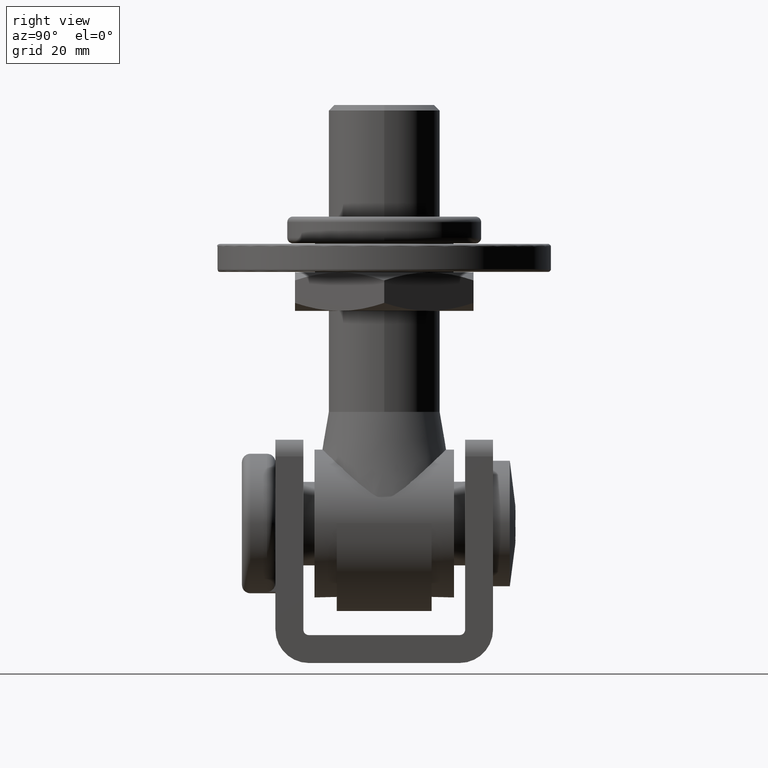
[diagram: clean part render]
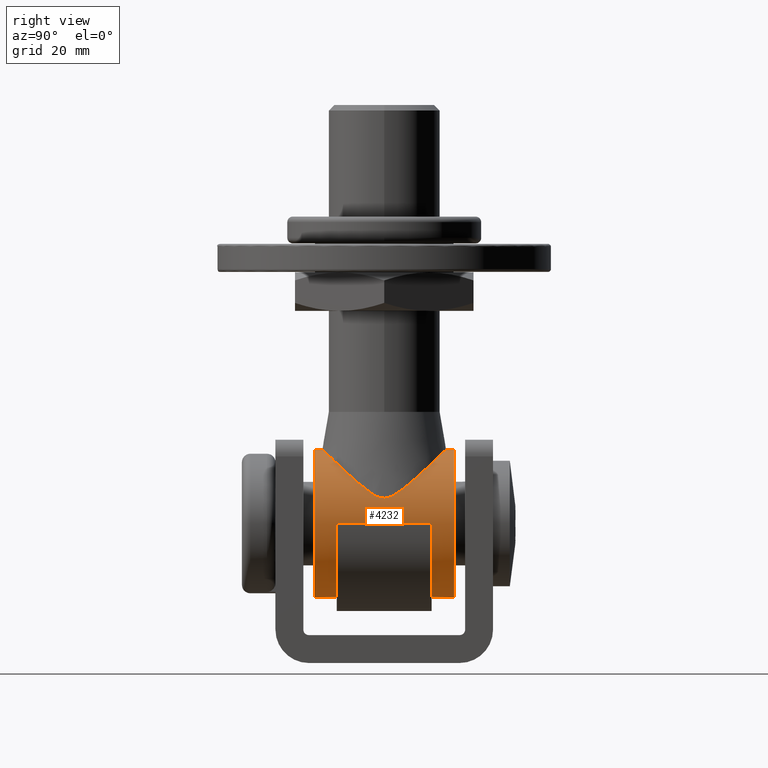
[diagram: same view with one face highlighted and labeled with its STEP entity id]
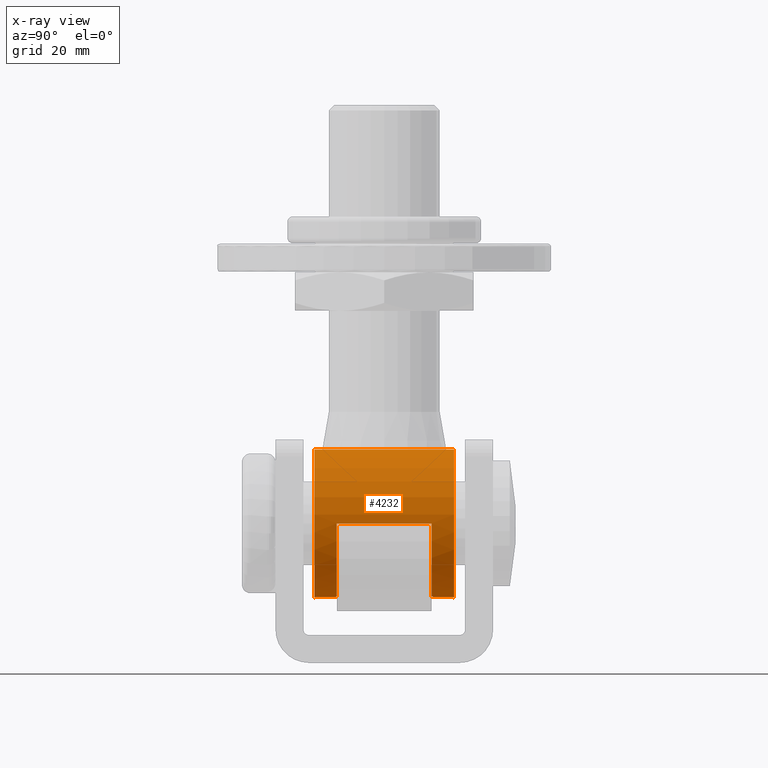
[diagram: x-ray of the same camera — body ghosted, the highlighted face saturated]
A machine part, right view. The second image highlights one B-rep face of the part: STEP entity #4232.
The next image is the same camera in x-ray: the body ghosted, the highlighted face saturated — about 0% of this face is hidden behind the body in this view.
In plain terms, the highlighted cylindrical surface (bore or boss wall) has radius 13.25 mm, axis along (-0, -1, -0).
Its self-contained STEP definition (entity closure, byte-faithful):
#896 = AXIS2_PLACEMENT_3D ( 'NONE', #5827, #10612, #4564 ) ;
#1260 = CIRCLE ( 'NONE', #8952, 13.25000000000000178 ) ;
#1590 = DIRECTION ( 'NONE',  ( -0.000000000000000000, -1.000000000000000000, -0.000000000000000000 ) ) ;
#1656 = VECTOR ( 'NONE', #1590, 1000.000000000000000 ) ;
#1827 = ORIENTED_EDGE ( 'NONE', *, *, #5536, .F. ) ;
#1923 = CARTESIAN_POINT ( 'NONE',  ( 13.25000000000000178, -8.500000000000000000, 3.816391647148974977E-14 ) ) ;
#2064 = DIRECTION ( 'NONE',  ( 0.000000000000000000, 1.000000000000000000, -0.000000000000000000 ) ) ;
#2169 = EDGE_LOOP ( 'NONE', ( #12134 ) ) ;
#2233 = ORIENTED_EDGE ( 'NONE', *, *, #10910, .F. ) ;
#2302 = DIRECTION ( 'NONE',  ( 0.000000000000000000, 1.000000000000000000, -0.000000000000000000 ) ) ;
#2484 = FACE_OUTER_BOUND ( 'NONE', #4130, .T. ) ;
#2538 = CARTESIAN_POINT ( 'NONE',  ( 13.25000000000000178, 8.500000000000000000, 3.816391647148975608E-14 ) ) ;
#2689 = EDGE_CURVE ( 'NONE', #3249, #9674, #7320, .T. ) ;
#2943 = VERTEX_POINT ( 'NONE', #2538 ) ;
#3249 = VERTEX_POINT ( 'NONE', #4916 ) ;
#3365 = EDGE_CURVE ( 'NONE', #2943, #3249, #1260, .T. ) ;
#3392 = FACE_OUTER_BOUND ( 'NONE', #2169, .T. ) ;
#3735 = EDGE_CURVE ( 'NONE', #14371, #14371, #6904, .T. ) ;
#3809 = DIRECTION ( 'NONE',  ( 0.000000000000000000, 0.000000000000000000, 1.000000000000000000 ) ) ;
#4130 = EDGE_LOOP ( 'NONE', ( #12625 ) ) ;
#4232 = ADVANCED_FACE ( 'NONE', ( #7365, #2484, #3392 ), #6792, .T. ) ;
#4511 = CARTESIAN_POINT ( 'NONE',  ( 0.000000000000000000, -8.500000000000000000, 0.000000000000000000 ) ) ;
#4564 = DIRECTION ( 'NONE',  ( 0.000000000000000000, 0.000000000000000000, -1.000000000000000000 ) ) ;
#4916 = CARTESIAN_POINT ( 'NONE',  ( -13.25000000000000178, 8.500000000000000000, 3.903127820947815962E-14 ) ) ;
#5536 = EDGE_CURVE ( 'NONE', #12190, #9674, #9424, .T. ) ;
#5827 = CARTESIAN_POINT ( 'NONE',  ( 0.000000000000000000, 12.50000000000000000, 0.000000000000000000 ) ) ;
#5930 = LINE ( 'NONE', #9032, #13687 ) ;
#6663 = AXIS2_PLACEMENT_3D ( 'NONE', #4511, #2064, #12961 ) ;
#6790 = EDGE_CURVE ( 'NONE', #12986, #12986, #14894, .T. ) ;
#6792 = CYLINDRICAL_SURFACE ( 'NONE', #896, 13.25000000000000178 ) ;
#6904 = CIRCLE ( 'NONE', #12894, 13.25000000000000178 ) ;
#6931 = AXIS2_PLACEMENT_3D ( 'NONE', #9793, #7309, #3809 ) ;
#7255 = DIRECTION ( 'NONE',  ( 0.000000000000000000, 0.000000000000000000, 1.000000000000000000 ) ) ;
#7309 = DIRECTION ( 'NONE',  ( 0.000000000000000000, 1.000000000000000000, -0.000000000000000000 ) ) ;
#7320 = LINE ( 'NONE', #12373, #1656 ) ;
#7365 = FACE_BOUND ( 'NONE', #11031, .T. ) ;
#7542 = ORIENTED_EDGE ( 'NONE', *, *, #3365, .T. ) ;
#8442 = CARTESIAN_POINT ( 'NONE',  ( 0.000000000000000000, -12.50000000000000000, 13.25000000000000178 ) ) ;
#8952 = AXIS2_PLACEMENT_3D ( 'NONE', #13145, #10908, #7255 ) ;
#9032 = CARTESIAN_POINT ( 'NONE',  ( 13.25000000000000178, 8.500000000000000000, 3.816391647148974977E-14 ) ) ;
#9424 = CIRCLE ( 'NONE', #6663, 13.25000000000000178 ) ;
#9517 = CARTESIAN_POINT ( 'NONE',  ( 0.000000000000000000, 12.50000000000000000, 0.000000000000000000 ) ) ;
#9674 = VERTEX_POINT ( 'NONE', #13674 ) ;
#9793 = CARTESIAN_POINT ( 'NONE',  ( 0.000000000000000000, -12.50000000000000000, 0.000000000000000000 ) ) ;
#10612 = DIRECTION ( 'NONE',  ( -0.000000000000000000, -1.000000000000000000, -0.000000000000000000 ) ) ;
#10908 = DIRECTION ( 'NONE',  ( 0.000000000000000000, 1.000000000000000000, -0.000000000000000000 ) ) ;
#10910 = EDGE_CURVE ( 'NONE', #2943, #12190, #5930, .T. ) ;
#11031 = EDGE_LOOP ( 'NONE', ( #2233, #7542, #15559, #1827 ) ) ;
#11248 = CARTESIAN_POINT ( 'NONE',  ( 0.000000000000000000, 12.50000000000000000, 13.25000000000000178 ) ) ;
#12134 = ORIENTED_EDGE ( 'NONE', *, *, #6790, .T. ) ;
#12190 = VERTEX_POINT ( 'NONE', #1923 ) ;
#12373 = CARTESIAN_POINT ( 'NONE',  ( -13.25000000000000178, 8.500000000000000000, 3.816391647148974977E-14 ) ) ;
#12625 = ORIENTED_EDGE ( 'NONE', *, *, #3735, .F. ) ;
#12894 = AXIS2_PLACEMENT_3D ( 'NONE', #9517, #2302, #15400 ) ;
#12961 = DIRECTION ( 'NONE',  ( 0.000000000000000000, 0.000000000000000000, 1.000000000000000000 ) ) ;
#12986 = VERTEX_POINT ( 'NONE', #8442 ) ;
#13145 = CARTESIAN_POINT ( 'NONE',  ( 0.000000000000000000, 8.500000000000000000, 0.000000000000000000 ) ) ;
#13674 = CARTESIAN_POINT ( 'NONE',  ( -13.25000000000000178, -8.500000000000000000, 3.816391647148974977E-14 ) ) ;
#13687 = VECTOR ( 'NONE', #13830, 1000.000000000000000 ) ;
#13830 = DIRECTION ( 'NONE',  ( -0.000000000000000000, -1.000000000000000000, -0.000000000000000000 ) ) ;
#14371 = VERTEX_POINT ( 'NONE', #11248 ) ;
#14894 = CIRCLE ( 'NONE', #6931, 13.25000000000000178 ) ;
#15400 = DIRECTION ( 'NONE',  ( 0.000000000000000000, 0.000000000000000000, 1.000000000000000000 ) ) ;
#15559 = ORIENTED_EDGE ( 'NONE', *, *, #2689, .T. ) ;